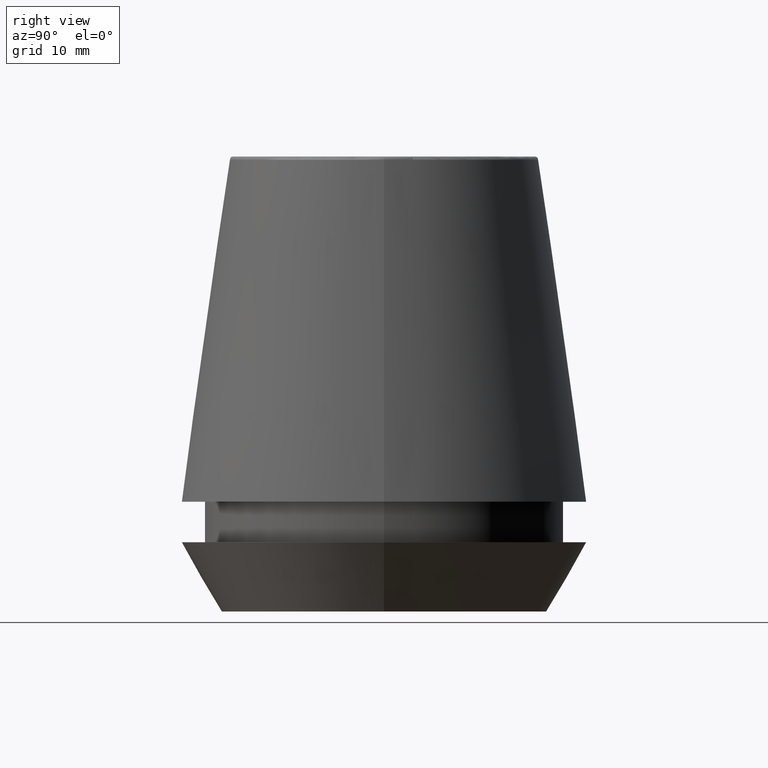
[diagram: clean part render]
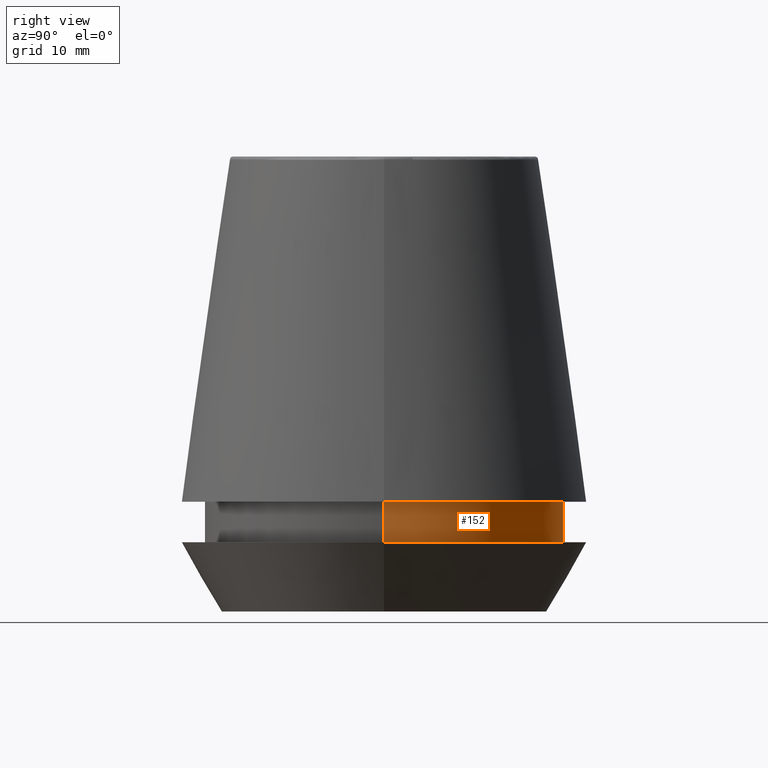
[diagram: same view with one face highlighted and labeled with its STEP entity id]
A machine part, right view. The second image highlights one B-rep face of the part: STEP entity #152.
In plain terms, the highlighted cylindrical surface (partial cylindrical patch) has radius 18.1 mm, axis along (-0, -0, 1).
Its self-contained STEP definition (entity closure, byte-faithful):
#4 = DIRECTION ( 'NONE',  ( -0.0000000000000000000, -0.0000000000000000000, 1.000000000000000000 ) ) ;
#13 = CARTESIAN_POINT ( 'NONE',  ( 0.0000000000000000000, 0.0000000000000000000, 46.00000000000000000 ) ) ;
#21 = ORIENTED_EDGE ( 'NONE', *, *, #296, .T. ) ;
#46 = ORIENTED_EDGE ( 'NONE', *, *, #143, .T. ) ;
#102 = CARTESIAN_POINT ( 'NONE',  ( 18.10000000000000500, 0.0000000000000000000, 46.00000000000000000 ) ) ;
#110 = ORIENTED_EDGE ( 'NONE', *, *, #180, .F. ) ;
#111 = LINE ( 'NONE', #313, #366 ) ;
#115 = ORIENTED_EDGE ( 'NONE', *, *, #281, .F. ) ;
#118 = AXIS2_PLACEMENT_3D ( 'NONE', #13, #286, #197 ) ;
#124 = DIRECTION ( 'NONE',  ( -0.0000000000000000000, -0.0000000000000000000, 1.000000000000000000 ) ) ;
#130 = DIRECTION ( 'NONE',  ( -0.0000000000000000000, -0.0000000000000000000, 1.000000000000000000 ) ) ;
#141 = VERTEX_POINT ( 'NONE', #284 ) ;
#143 = EDGE_CURVE ( 'NONE', #141, #208, #111, .T. ) ;
#152 = ADVANCED_FACE ( 'NONE', ( #295 ), #199, .T. ) ;
#157 = CIRCLE ( 'NONE', #317, 18.10000000000000100 ) ;
#177 = VERTEX_POINT ( 'NONE', #231 ) ;
#179 = CIRCLE ( 'NONE', #272, 18.10000000000000500 ) ;
#180 = EDGE_CURVE ( 'NONE', #177, #327, #241, .T. ) ;
#193 = DIRECTION ( 'NONE',  ( 1.000000000000000000, 0.0000000000000000000, 0.0000000000000000000 ) ) ;
#197 = DIRECTION ( 'NONE',  ( 1.000000000000000000, 0.0000000000000000000, 0.0000000000000000000 ) ) ;
#199 = CYLINDRICAL_SURFACE ( 'NONE', #118, 18.10000000000000500 ) ;
#208 = VERTEX_POINT ( 'NONE', #319 ) ;
#224 = CARTESIAN_POINT ( 'NONE',  ( 0.0000000000000000000, 0.0000000000000000000, 11.09999999999999800 ) ) ;
#231 = CARTESIAN_POINT ( 'NONE',  ( 18.10000000000000100, 0.0000000000000000000, 6.999999999999999100 ) ) ;
#240 = EDGE_LOOP ( 'NONE', ( #21, #46, #115, #110 ) ) ;
#241 = LINE ( 'NONE', #102, #292 ) ;
#257 = CARTESIAN_POINT ( 'NONE',  ( 18.10000000000000500, 0.0000000000000000000, 11.09999999999999800 ) ) ;
#270 = DIRECTION ( 'NONE',  ( -0.0000000000000000000, -0.0000000000000000000, 1.000000000000000000 ) ) ;
#272 = AXIS2_PLACEMENT_3D ( 'NONE', #224, #4, #193 ) ;
#281 = EDGE_CURVE ( 'NONE', #327, #208, #179, .T. ) ;
#284 = CARTESIAN_POINT ( 'NONE',  ( -18.10000000000000100, 2.216610706456709600E-015, 6.999999999999999100 ) ) ;
#286 = DIRECTION ( 'NONE',  ( -0.0000000000000000000, -0.0000000000000000000, 1.000000000000000000 ) ) ;
#292 = VECTOR ( 'NONE', #270, 1000.000000000000000 ) ;
#295 = FACE_OUTER_BOUND ( 'NONE', #240, .T. ) ;
#296 = EDGE_CURVE ( 'NONE', #177, #141, #157, .T. ) ;
#305 = DIRECTION ( 'NONE',  ( 1.000000000000000000, 0.0000000000000000000, 0.0000000000000000000 ) ) ;
#313 = CARTESIAN_POINT ( 'NONE',  ( -18.10000000000000500, 2.216610706456710000E-015, 46.00000000000000000 ) ) ;
#317 = AXIS2_PLACEMENT_3D ( 'NONE', #332, #124, #305 ) ;
#319 = CARTESIAN_POINT ( 'NONE',  ( -18.10000000000000500, 2.216610706456710000E-015, 11.09999999999999800 ) ) ;
#327 = VERTEX_POINT ( 'NONE', #257 ) ;
#332 = CARTESIAN_POINT ( 'NONE',  ( 0.0000000000000000000, 0.0000000000000000000, 6.999999999999999100 ) ) ;
#366 = VECTOR ( 'NONE', #130, 1000.000000000000000 ) ;